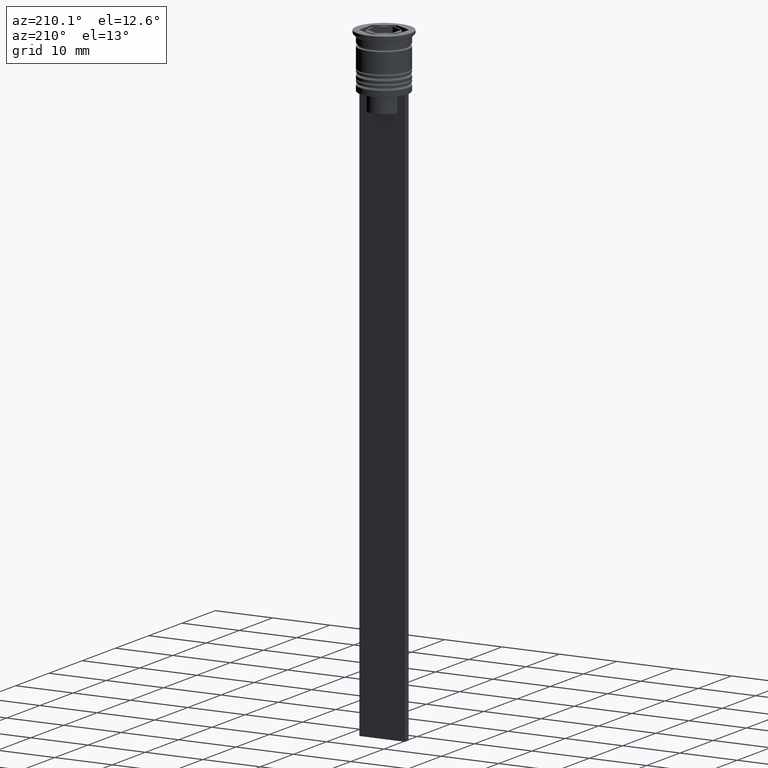
[diagram: clean part render]
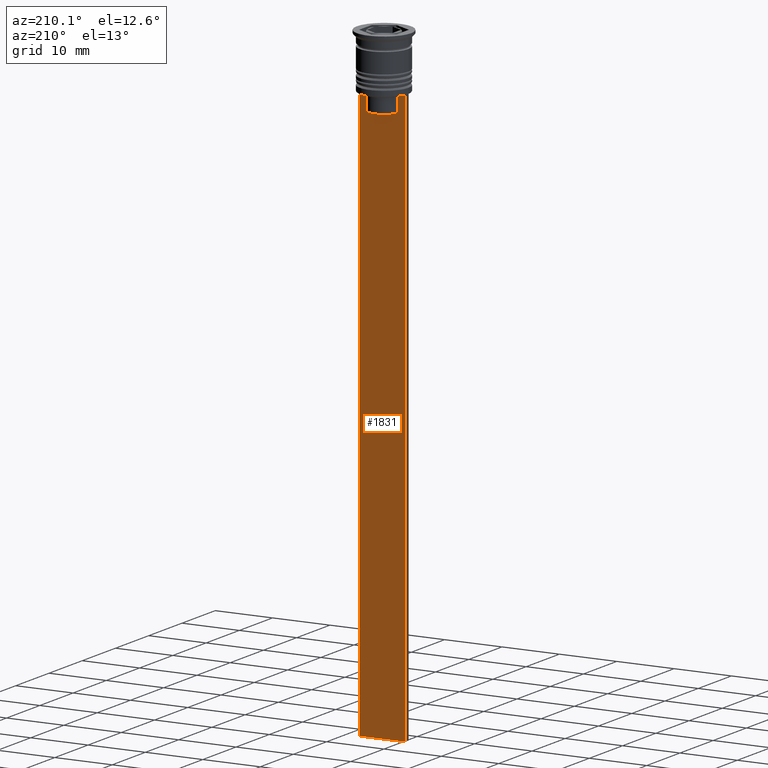
[diagram: same view with one face highlighted and labeled with its STEP entity id]
A machine part, auxiliary view. The second image highlights one B-rep face of the part: STEP entity #1831.
In plain terms, the highlighted planar face has unit normal (0, -1, -0).
Its self-contained STEP definition (entity closure, byte-faithful):
#20 = ORIENTED_EDGE ( 'NONE', *, *, #823, .T. ) ;
#22 = CARTESIAN_POINT ( 'NONE',  ( 4.000000000000005329, 0.4999999999999995559, -1.437742251701450202 ) ) ;
#113 = ORIENTED_EDGE ( 'NONE', *, *, #2354, .T. ) ;
#157 = CARTESIAN_POINT ( 'NONE',  ( -2.602402735934617350, 0.4999999999999995559, 0.000000000000000000 ) ) ;
#163 = EDGE_CURVE ( 'NONE', #347, #2072, #1595, .T. ) ;
#212 = ORIENTED_EDGE ( 'NONE', *, *, #2008, .T. ) ;
#218 = DIRECTION ( 'NONE',  ( 0.000000000000000000, 0.000000000000000000, -1.000000000000000000 ) ) ;
#248 = CARTESIAN_POINT ( 'NONE',  ( 2.602402735934617350, 0.4999999999999995559, 0.000000000000000000 ) ) ;
#249 = CARTESIAN_POINT ( 'NONE',  ( 2.941045828809989438, 0.4999999999999995559, -9.666875663357577864 ) ) ;
#261 = VECTOR ( 'NONE', #1352, 1000.000000000000000 ) ;
#299 = DIRECTION ( 'NONE',  ( 1.000000000000000000, 0.000000000000000000, 0.000000000000000000 ) ) ;
#347 = VERTEX_POINT ( 'NONE', #939 ) ;
#372 = EDGE_CURVE ( 'NONE', #481, #460, #879, .T. ) ;
#373 = VERTEX_POINT ( 'NONE', #2127 ) ;
#394 = VERTEX_POINT ( 'NONE', #992 ) ;
#399 = ORIENTED_EDGE ( 'NONE', *, *, #1371, .T. ) ;
#417 = EDGE_CURVE ( 'NONE', #1655, #1191, #2225, .T. ) ;
#460 = VERTEX_POINT ( 'NONE', #672 ) ;
#481 = VERTEX_POINT ( 'NONE', #550 ) ;
#533 = CARTESIAN_POINT ( 'NONE',  ( 2.602402735934617350, 0.4999999999999995559, -12.50000000000000000 ) ) ;
#550 = CARTESIAN_POINT ( 'NONE',  ( 2.602402735934617350, 0.4999999999999995559, -10.00000000000000178 ) ) ;
#572 = CARTESIAN_POINT ( 'NONE',  ( 4.000000000000005329, 0.4999999999999995559, -1.437742251701450202 ) ) ;
#591 = DIRECTION ( 'NONE',  ( 1.000000000000000000, 0.000000000000000000, 0.000000000000000000 ) ) ;
#635 = VECTOR ( 'NONE', #721, 1000.000000000000000 ) ;
#641 = VECTOR ( 'NONE', #299, 1000.000000000000000 ) ;
#665 = CARTESIAN_POINT ( 'NONE',  ( -3.110064308016796897, 0.4999999999999995559, -9.500000000000000000 ) ) ;
#672 = CARTESIAN_POINT ( 'NONE',  ( 3.110064308016796897, 0.4999999999999995559, -9.500000000000000000 ) ) ;
#721 = DIRECTION ( 'NONE',  ( 1.000000000000000000, 0.000000000000000000, 0.000000000000000000 ) ) ;
#735 = LINE ( 'NONE', #758, #635 ) ;
#742 = FACE_OUTER_BOUND ( 'NONE', #2169, .T. ) ;
#743 = DIRECTION ( 'NONE',  ( -1.000000000000000000, 0.000000000000000000, 0.000000000000000000 ) ) ;
#758 = CARTESIAN_POINT ( 'NONE',  ( 0.000000000000000000, 0.4999999999999995559, -12.50000000000000000 ) ) ;
#804 = CARTESIAN_POINT ( 'NONE',  ( 3.110064308016796897, 0.4999999999999995559, -9.500000000000000000 ) ) ;
#823 = EDGE_CURVE ( 'NONE', #881, #373, #1588, .T. ) ;
#824 = ORIENTED_EDGE ( 'NONE', *, *, #2323, .T. ) ;
#846 = CARTESIAN_POINT ( 'NONE',  ( -3.110064308016796897, 0.4999999999999995559, -9.500000000000000000 ) ) ;
#871 = DIRECTION ( 'NONE',  ( 0.000000000000000000, 0.000000000000000000, -1.000000000000000000 ) ) ;
#879 = B_SPLINE_CURVE_WITH_KNOTS ( 'NONE', 3,
 ( #1556, #1216, #249, #804 ),
 .UNSPECIFIED., .F., .F.,
 ( 4, 4 ),
 ( 0.01295151922336847637, 0.01367164596165162602 ),
 .UNSPECIFIED. ) ;
#881 = VERTEX_POINT ( 'NONE', #2347 ) ;
#887 = CARTESIAN_POINT ( 'NONE',  ( -2.771866350855961780, 0.4999999999999995559, -9.833580160334840059 ) ) ;
#898 = CARTESIAN_POINT ( 'NONE',  ( 4.000000000000005329, 0.4999999999999995559, -9.500000000000000000 ) ) ;
#939 = CARTESIAN_POINT ( 'NONE',  ( -3.999999999999994671, 0.4999999999999997780, -9.500000000000000000 ) ) ;
#992 = CARTESIAN_POINT ( 'NONE',  ( 4.000000000000005329, 0.4999999999999995559, -9.500000000000000000 ) ) ;
#1039 = CARTESIAN_POINT ( 'NONE',  ( -2.941047749529105193, 0.4999999999999995559, -9.666873766989334982 ) ) ;
#1044 = ORIENTED_EDGE ( 'NONE', *, *, #1539, .F. ) ;
#1060 = CARTESIAN_POINT ( 'NONE',  ( -3.999999999999994671, 0.4999999999999995559, -109.5000000000000000 ) ) ;
#1065 = VECTOR ( 'NONE', #218, 1000.000000000000000 ) ;
#1146 = CARTESIAN_POINT ( 'NONE',  ( 4.000000000000005329, 0.4999999999999995559, -109.5000000000000000 ) ) ;
#1148 = ORIENTED_EDGE ( 'NONE', *, *, #417, .T. ) ;
#1160 = ORIENTED_EDGE ( 'NONE', *, *, #1194, .T. ) ;
#1190 = LINE ( 'NONE', #1706, #1065 ) ;
#1191 = VERTEX_POINT ( 'NONE', #1060 ) ;
#1194 = EDGE_CURVE ( 'NONE', #2072, #881, #1816, .T. ) ;
#1216 = CARTESIAN_POINT ( 'NONE',  ( 2.771864055700302476, 0.4999999999999995559, -9.833582414266677674 ) ) ;
#1256 = VECTOR ( 'NONE', #591, 1000.000000000000000 ) ;
#1314 = LINE ( 'NONE', #1538, #1256 ) ;
#1321 = VERTEX_POINT ( 'NONE', #533 ) ;
#1352 = DIRECTION ( 'NONE',  ( -0.000000000000000000, -0.000000000000000000, 1.000000000000000000 ) ) ;
#1371 = EDGE_CURVE ( 'NONE', #373, #1321, #735, .T. ) ;
#1415 = VECTOR ( 'NONE', #871, 1000.000000000000000 ) ;
#1480 = PLANE ( 'NONE',  #2327 ) ;
#1538 = CARTESIAN_POINT ( 'NONE',  ( 4.000000000000005329, 0.4999999999999995559, -9.500000000000000000 ) ) ;
#1539 = EDGE_CURVE ( 'NONE', #347, #1191, #1190, .T. ) ;
#1548 = LINE ( 'NONE', #572, #1839 ) ;
#1556 = CARTESIAN_POINT ( 'NONE',  ( 2.602402735934617350, 0.4999999999999995559, -10.00000000000000178 ) ) ;
#1558 = ORIENTED_EDGE ( 'NONE', *, *, #372, .T. ) ;
#1576 = CARTESIAN_POINT ( 'NONE',  ( -2.602402735934617350, 0.4999999999999995559, -10.00000000000000178 ) ) ;
#1588 = LINE ( 'NONE', #157, #1415 ) ;
#1595 = LINE ( 'NONE', #898, #641 ) ;
#1655 = VERTEX_POINT ( 'NONE', #1975 ) ;
#1690 = DIRECTION ( 'NONE',  ( 0.000000000000000000, 0.000000000000000000, -1.000000000000000000 ) ) ;
#1706 = CARTESIAN_POINT ( 'NONE',  ( -3.999999999999994671, 0.4999999999999995559, -1.437742251701450202 ) ) ;
#1816 = B_SPLINE_CURVE_WITH_KNOTS ( 'NONE', 3,
 ( #665, #1039, #887, #1576 ),
 .UNSPECIFIED., .F., .F.,
 ( 4, 4 ),
 ( 0.005378271293598279809, 0.006090816219555997280 ),
 .UNSPECIFIED. ) ;
#1831 = ADVANCED_FACE ( 'NONE', ( #742 ), #1480, .F. ) ;
#1839 = VECTOR ( 'NONE', #1690, 1000.000000000000000 ) ;
#1843 = DIRECTION ( 'NONE',  ( 0.000000000000000000, -1.000000000000000000, -0.000000000000000000 ) ) ;
#1975 = CARTESIAN_POINT ( 'NONE',  ( 4.000000000000005329, 0.4999999999999995559, -109.5000000000000000 ) ) ;
#2008 = EDGE_CURVE ( 'NONE', #394, #1655, #1548, .T. ) ;
#2063 = ORIENTED_EDGE ( 'NONE', *, *, #163, .T. ) ;
#2072 = VERTEX_POINT ( 'NONE', #846 ) ;
#2079 = LINE ( 'NONE', #248, #261 ) ;
#2112 = VECTOR ( 'NONE', #743, 1000.000000000000000 ) ;
#2127 = CARTESIAN_POINT ( 'NONE',  ( -2.602402735934617350, 0.4999999999999995559, -12.50000000000000000 ) ) ;
#2169 = EDGE_LOOP ( 'NONE', ( #2063, #1160, #20, #399, #113, #1558, #824, #212, #1148, #1044 ) ) ;
#2206 = DIRECTION ( 'NONE',  ( 0.000000000000000000, 0.000000000000000000, -1.000000000000000000 ) ) ;
#2225 = LINE ( 'NONE', #1146, #2112 ) ;
#2323 = EDGE_CURVE ( 'NONE', #460, #394, #1314, .T. ) ;
#2327 = AXIS2_PLACEMENT_3D ( 'NONE', #22, #1843, #2206 ) ;
#2347 = CARTESIAN_POINT ( 'NONE',  ( -2.602402735934617350, 0.4999999999999995559, -10.00000000000000178 ) ) ;
#2354 = EDGE_CURVE ( 'NONE', #1321, #481, #2079, .T. ) ;